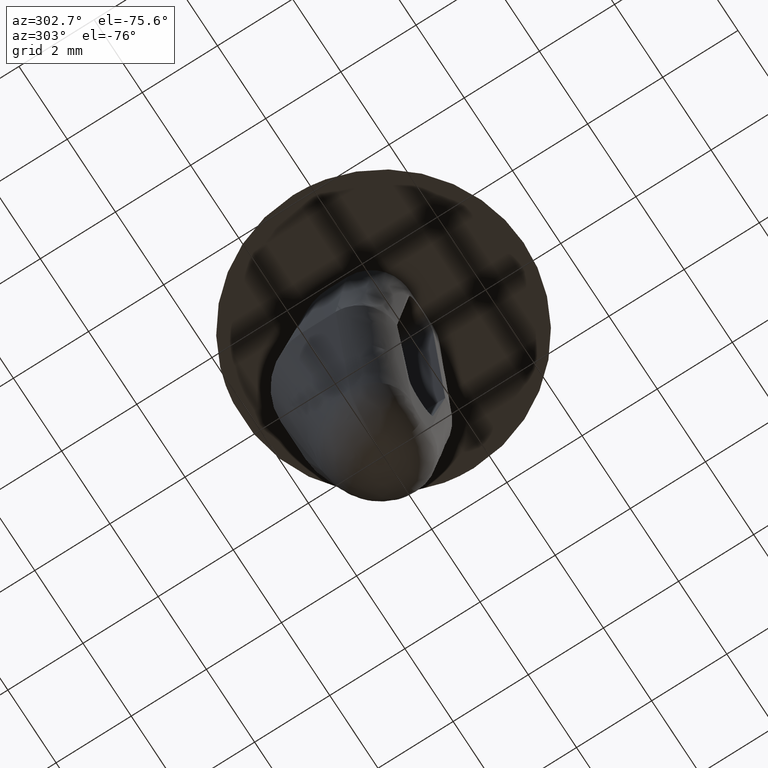
[diagram: clean part render]
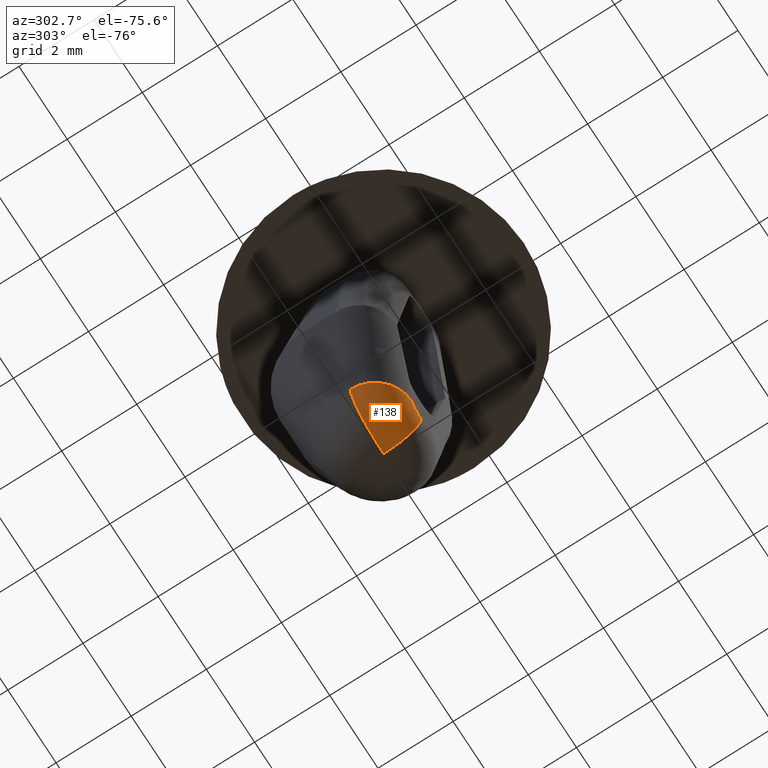
[diagram: same view with one face highlighted and labeled with its STEP entity id]
A machine part, auxiliary view. The second image highlights one B-rep face of the part: STEP entity #138.
In plain terms, the highlighted face is a freeform B-spline surface patch.
Its self-contained STEP definition (entity closure, byte-faithful):
#44=CARTESIAN_POINT('',(-0.320246533019921,-0.996853669674888,-9.617713035843980));
#45=CARTESIAN_POINT('',(-0.857151202196848,-1.039610400705013,-9.647412921646270));
#46=CARTESIAN_POINT('',(-1.187703476016993,-0.613725799185414,-9.665698038814639));
#47=CARTESIAN_POINT('',(-1.426003885991221,-0.306698792621690,-9.678880071620808));
#48=CARTESIAN_POINT('',(-1.394589769121507,0.080904829260069,-9.677142341000877));
#49=CARTESIAN_POINT('',(-0.303484354597487,-0.996853669674889,-9.920734128938156));
#50=CARTESIAN_POINT('',(-0.812286637229540,-1.039610400705014,-10.458459623034031));
#51=CARTESIAN_POINT('',(-1.125537314871687,-0.613725799185414,-10.789517248286085));
#52=CARTESIAN_POINT('',(-1.351364728019190,-0.306698792621690,-11.028181974173231));
#53=CARTESIAN_POINT('',(-1.321594872609507,0.080904829260069,-10.996719831105548));
#54=CARTESIAN_POINT('',(0.001037031832996,-0.996853669674888,-9.920734128938156));
#55=CARTESIAN_POINT('',(0.002775652476193,-1.039610400705013,-10.458459623034031));
#56=CARTESIAN_POINT('',(0.003846056665079,-0.613725799185415,-10.789517248286089));
#57=CARTESIAN_POINT('',(0.004617728129025,-0.306698792621690,-11.028181974173235));
#58=CARTESIAN_POINT('',(0.004516002002930,0.080904829260069,-10.996719831105549));
#59=CARTESIAN_POINT('',(0.002071289647488,-0.996853669674888,-9.920734128938156));
#60=CARTESIAN_POINT('',(0.005543880193487,-1.039610400705013,-10.458459623034029));
#61=CARTESIAN_POINT('',(0.007681825283042,-0.613725799185415,-10.789517248286087));
#62=CARTESIAN_POINT('',(0.009223104020761,-0.306698792621690,-11.028181974173235));
#63=CARTESIAN_POINT('',(0.009019923881874,0.080904829260069,-10.996719831105548));
#71=(BOUNDED_SURFACE()B_SPLINE_SURFACE(2,2,((#44,#49,#54,#59),(#45,#50,#55,#60),(#46,#51,#56,#61),(#47,#52,#57,#62),(#48,#53,#58,#63)),.UNSPECIFIED.,.F.,.F.,.U.)B_SPLINE_SURFACE_WITH_KNOTS((3,2,3),(3,1,3),(0.0,1.015834027902879,1.781525960023052),(0.0,2.224169132979136,2.234762260601816),.UNSPECIFIED.)GEOMETRIC_REPRESENTATION_ITEM()RATIONAL_B_SPLINE_SURFACE(((0.899348163703198,0.660487454471818,0.920587740980131,0.921820657598714),(0.825518948248742,0.606266772705621,0.845014927895494,0.846146632024471),(0.978238368768833,0.718424961690388,1.001341067220090,1.002682134440180),(0.863125048129527,0.633884950164946,0.883509157309132,0.884692415649676),(0.876725221837509,0.643873010935283,0.897430521354859,0.898632424176880)))REPRESENTATION_ITEM('')SURFACE());
#72=CARTESIAN_POINT('',(0.000001144234802,2.675988E-015,-10.999997999999060));
#73=VERTEX_POINT('',#72);
#74=CARTESIAN_POINT('',(-1.389561000000000,0.0,-9.770653000000001));
#75=VERTEX_POINT('',#74);
#76=CARTESIAN_POINT('',(0.000001144234802,2.675988E-015,-10.999997999999062));
#77=CARTESIAN_POINT('',(-1.238581820283585,1.337994E-015,-10.999999075468697));
#78=CARTESIAN_POINT('',(-1.389561000000000,0.0,-9.770653000000001));
#86=(BOUNDED_CURVE()B_SPLINE_CURVE(2,(#76,#77,#78),.UNSPECIFIED.,.F.,.U.)B_SPLINE_CURVE_WITH_KNOTS((3,3),(0.500000308367615,1.0),.UNSPECIFIED.)CURVE()GEOMETRIC_REPRESENTATION_ITEM()RATIONAL_B_SPLINE_CURVE((0.999999690354935,0.748964344856799,1.0))REPRESENTATION_ITEM(''));
#87=EDGE_CURVE('',#73,#75,#86,.T.);
#88=ORIENTED_EDGE('',*,*,#87,.F.);
#89=CARTESIAN_POINT('',(-7.832641E-014,-1.0,-9.999998000003195));
#90=VERTEX_POINT('',#89);
#91=CARTESIAN_POINT('',(-7.832641E-014,-1.0,-9.999998000003197));
#92=CARTESIAN_POINT('',(0.000000279909762,-0.999999999996874,-10.489250417408385));
#93=CARTESIAN_POINT('',(0.000000672691860,-0.613725799185414,-10.789517248284220));
#94=CARTESIAN_POINT('',(0.000000948023874,-0.342955684759026,-10.999997999998678));
#95=CARTESIAN_POINT('',(0.000001144234802,2.675988E-015,-10.999997999999064));
#103=(BOUNDED_CURVE()B_SPLINE_CURVE(2,(#91,#92,#93,#94,#95),.UNSPECIFIED.,.F.,.U.)B_SPLINE_CURVE_WITH_KNOTS((3,2,3),(0.105785928066303,0.333333333333333,0.500000000000001),.UNSPECIFIED.)CURVE()GEOMETRIC_REPRESENTATION_ITEM()RATIONAL_B_SPLINE_CURVE((0.908802133323438,0.856316953266534,1.0,0.894759624143042,0.894759624143043))REPRESENTATION_ITEM(''));
#104=EDGE_CURVE('',#90,#73,#103,.T.);
#105=ORIENTED_EDGE('',*,*,#104,.F.);
#106=CARTESIAN_POINT('',(-0.397016716563887,-1.0,-9.648759939756531));
#107=VERTEX_POINT('',#106);
#108=CARTESIAN_POINT('',(-0.397016716563900,-1.0,-9.648759939756532));
#109=CARTESIAN_POINT('',(-0.353877351345182,-1.0,-9.999997999999863));
#110=CARTESIAN_POINT('',(-7.832641E-014,-1.0,-9.999998000003195));
#118=(BOUNDED_CURVE()B_SPLINE_CURVE(2,(#108,#109,#110),.UNSPECIFIED.,.F.,.U.)B_SPLINE_CURVE_WITH_KNOTS((3,3),(0.0,0.499997765606387),.UNSPECIFIED.)CURVE()GEOMETRIC_REPRESENTATION_ITEM()RATIONAL_B_SPLINE_CURVE((1.0,0.748966732323273,0.999997756371480))REPRESENTATION_ITEM(''));
#119=EDGE_CURVE('',#107,#90,#118,.T.);
#120=ORIENTED_EDGE('',*,*,#119,.F.);
#121=CARTESIAN_POINT('',(-1.389561000000000,0.0,-9.770653000000001));
#122=CARTESIAN_POINT('',(-1.389560613783452,-0.414213562376184,-9.770654383995208));
#123=CARTESIAN_POINT('',(-1.098851123792071,-0.707106781190529,-9.734952733229369));
#124=CARTESIAN_POINT('',(-0.808141633800691,-1.000000000004873,-9.699251082463528));
#125=CARTESIAN_POINT('',(-0.397016716563887,-1.0,-9.648759939756531));
#133=(BOUNDED_CURVE()B_SPLINE_CURVE(2,(#121,#122,#123,#124,#125),.UNSPECIFIED.,.F.,.U.)B_SPLINE_CURVE_WITH_KNOTS((3,2,3),(0.0,0.500000000000000,1.0),.UNSPECIFIED.)CURVE()GEOMETRIC_REPRESENTATION_ITEM()RATIONAL_B_SPLINE_CURVE((1.0,0.923879532509880,1.0,0.923879532509880,1.0))REPRESENTATION_ITEM(''));
#134=EDGE_CURVE('',#75,#107,#133,.T.);
#135=ORIENTED_EDGE('',*,*,#134,.F.);
#136=EDGE_LOOP('',(#88,#105,#120,#135));
#137=FACE_OUTER_BOUND('',#136,.T.);
#138=ADVANCED_FACE('',(#137),#71,.T.);